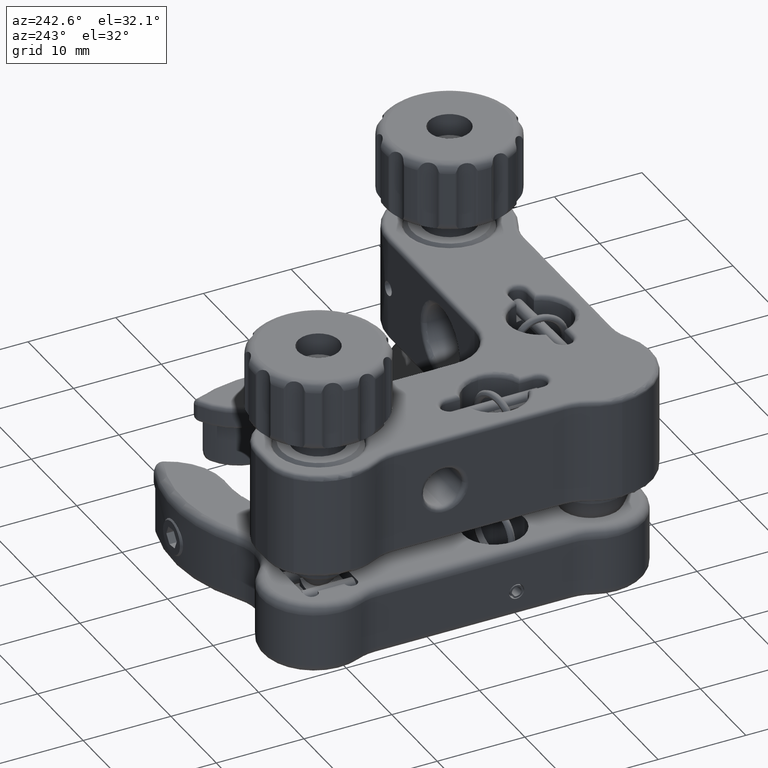
[diagram: clean part render]
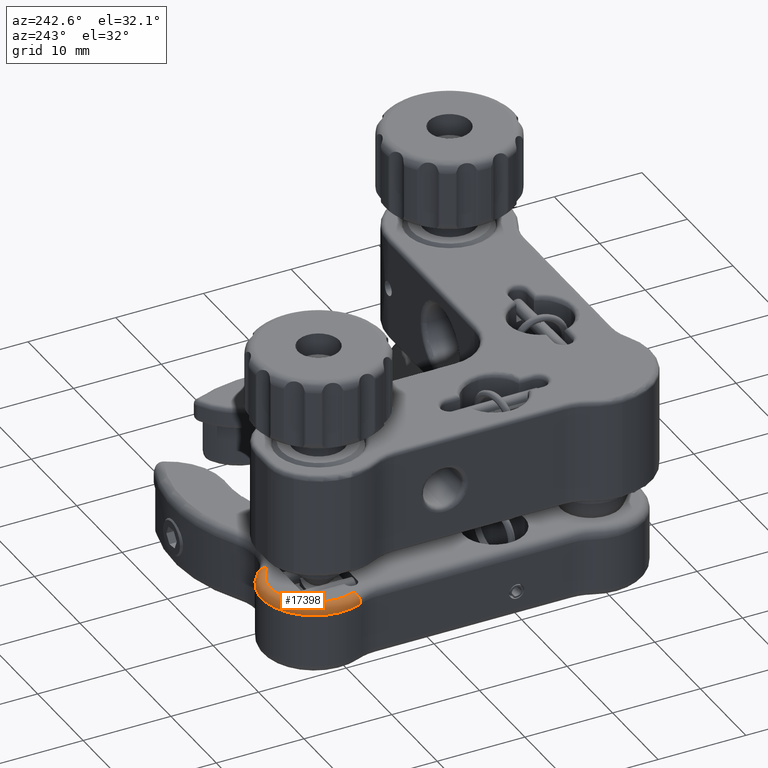
[diagram: same view with one face highlighted and labeled with its STEP entity id]
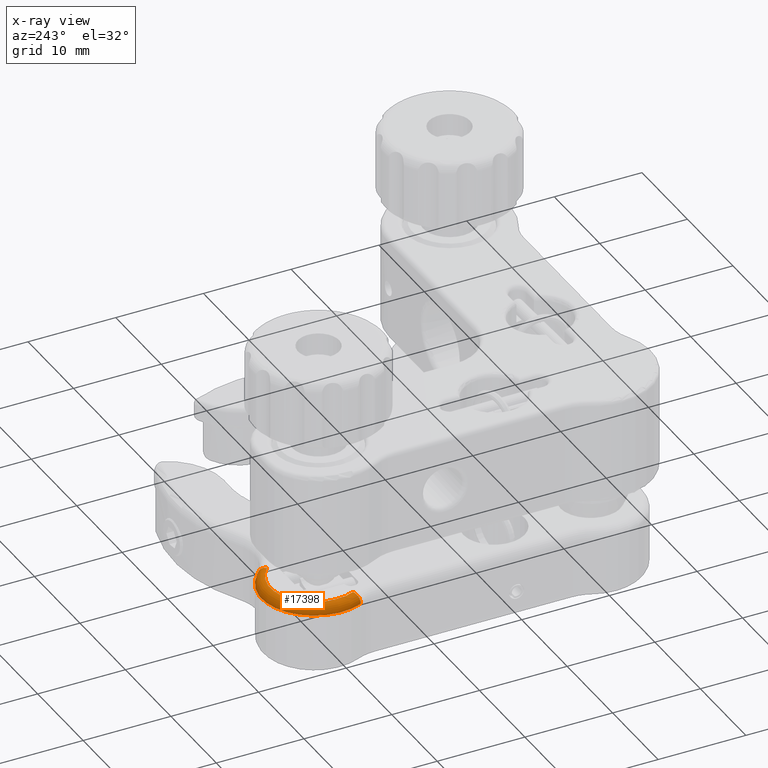
[diagram: x-ray of the same camera — body ghosted, the highlighted face saturated]
A machine part, auxiliary view. The second image highlights one B-rep face of the part: STEP entity #17398.
The next image is the same camera in x-ray: the body ghosted, the highlighted face saturated — about 0% of this face is hidden behind the body in this view.
In plain terms, the highlighted toroidal blend (fillet) surface has major radius 5 mm and minor (blend) radius 1 mm.
Its self-contained STEP definition (entity closure, byte-faithful):
#232 = DIRECTION ( 'NONE',  ( 2.507674296914023700E-032, -1.000000000000000000, -1.942890293094024700E-016 ) ) ;
#455 = CARTESIAN_POINT ( 'NONE',  ( 19.63476999459977200, 29.41701104774733400, -10.99999999999999800 ) ) ;
#594 = DIRECTION ( 'NONE',  ( 0.0000000000000000000, -1.000000000000000000, -2.891205793294675900E-016 ) ) ;
#1059 = EDGE_CURVE ( 'NONE', #5062, #13015, #15228, .T. ) ;
#1878 = AXIS2_PLACEMENT_3D ( 'NONE', #455, #8262, #14444 ) ;
#2436 = DIRECTION ( 'NONE',  ( -0.7077162953402640300, 0.7064967411884164300, 3.244092413201025400E-016 ) ) ;
#3378 = EDGE_CURVE ( 'NONE', #18193, #5062, #4612, .T. ) ;
#4612 = CIRCLE ( 'NONE', #20733, 5.000000000000004400 ) ;
#4647 = CIRCLE ( 'NONE', #15537, 6.000000000000005300 ) ;
#5062 = VERTEX_POINT ( 'NONE', #5354 ) ;
#5354 = CARTESIAN_POINT ( 'NONE',  ( 19.63476999459977900, 29.41701104774733400, -9.999999999999998200 ) ) ;
#6089 = CARTESIAN_POINT ( 'NONE',  ( 24.18022454005432200, 31.49999999999998600, -11.00000000000000000 ) ) ;
#6995 = CARTESIAN_POINT ( 'NONE',  ( 24.18022454005432200, 31.49999999999998600, -9.999999999999998200 ) ) ;
#7870 = CIRCLE ( 'NONE', #21549, 1.000000000000000000 ) ;
#8262 = DIRECTION ( 'NONE',  ( 0.4165977904505291900, -0.9090909090909100600, -2.867892602378374300E-016 ) ) ;
#8762 = DIRECTION ( 'NONE',  ( -2.644345997068941900E-016, 1.942890293094024400E-016, -1.000000000000000000 ) ) ;
#12512 = DIRECTION ( 'NONE',  ( -2.644345997068941900E-016, 1.942890293094024400E-016, -1.000000000000000000 ) ) ;
#13015 = VERTEX_POINT ( 'NONE', #18981 ) ;
#14444 = DIRECTION ( 'NONE',  ( 0.9090909090909102800, 0.4165977904505285800, 0.0000000000000000000 ) ) ;
#15228 = CIRCLE ( 'NONE', #1878, 1.000000000000001300 ) ;
#15537 = AXIS2_PLACEMENT_3D ( 'NONE', #22823, #8762, #594 ) ;
#15596 = EDGE_CURVE ( 'NONE', #18193, #17185, #7870, .T. ) ;
#17185 = VERTEX_POINT ( 'NONE', #25819 ) ;
#17398 = ADVANCED_FACE ( 'NONE', ( #20000 ), #22242, .T. ) ;
#17488 = EDGE_CURVE ( 'NONE', #13015, #17185, #4647, .T. ) ;
#18136 = ORIENTED_EDGE ( 'NONE', *, *, #17488, .F. ) ;
#18193 = VERTEX_POINT ( 'NONE', #21324 ) ;
#18981 = CARTESIAN_POINT ( 'NONE',  ( 18.72567908550886200, 29.00041325729680600, -10.99999999999999800 ) ) ;
#20000 = FACE_OUTER_BOUND ( 'NONE', #20526, .T. ) ;
#20197 = ORIENTED_EDGE ( 'NONE', *, *, #3378, .F. ) ;
#20526 = EDGE_LOOP ( 'NONE', ( #25207, #18136, #24341, #20197 ) ) ;
#20733 = AXIS2_PLACEMENT_3D ( 'NONE', #6995, #21503, #25391 ) ;
#20939 = CARTESIAN_POINT ( 'NONE',  ( 27.71270824599640600, 35.03858147670131700, -11.00000000000000000 ) ) ;
#21324 = CARTESIAN_POINT ( 'NONE',  ( 27.71270824599640600, 35.03858147670131000, -9.999999999999998200 ) ) ;
#21503 = DIRECTION ( 'NONE',  ( 2.644345997068941900E-016, -1.942890293094024400E-016, 1.000000000000000000 ) ) ;
#21549 = AXIS2_PLACEMENT_3D ( 'NONE', #20939, #2436, #25020 ) ;
#22242 = TOROIDAL_SURFACE ( 'NONE', #24756, 5.000000000000003600, 1.000000000000000000 ) ;
#22823 = CARTESIAN_POINT ( 'NONE',  ( 24.18022454005432200, 31.49999999999998600, -11.00000000000000000 ) ) ;
#24341 = ORIENTED_EDGE ( 'NONE', *, *, #1059, .F. ) ;
#24756 = AXIS2_PLACEMENT_3D ( 'NONE', #6089, #12512, #232 ) ;
#25020 = DIRECTION ( 'NONE',  ( -0.7064967411884171000, -0.7077162953402632600, 0.0000000000000000000 ) ) ;
#25207 = ORIENTED_EDGE ( 'NONE', *, *, #15596, .T. ) ;
#25391 = DIRECTION ( 'NONE',  ( 0.0000000000000000000, -1.000000000000000000, -3.469446951953611200E-016 ) ) ;
#25819 = CARTESIAN_POINT ( 'NONE',  ( 28.41920498718482300, 35.74629777204157900, -11.00000000000000000 ) ) ;